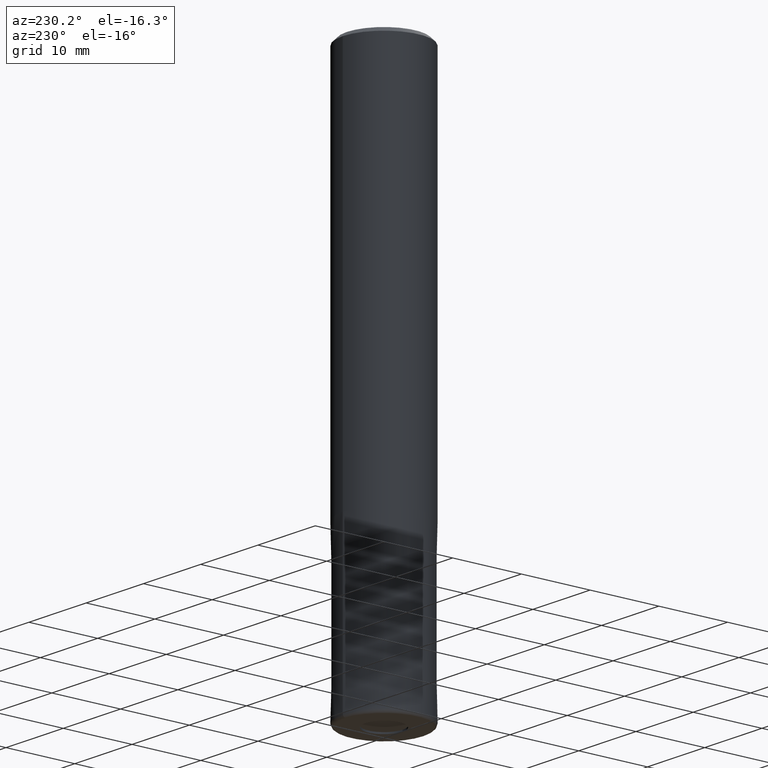
[diagram: clean part render]
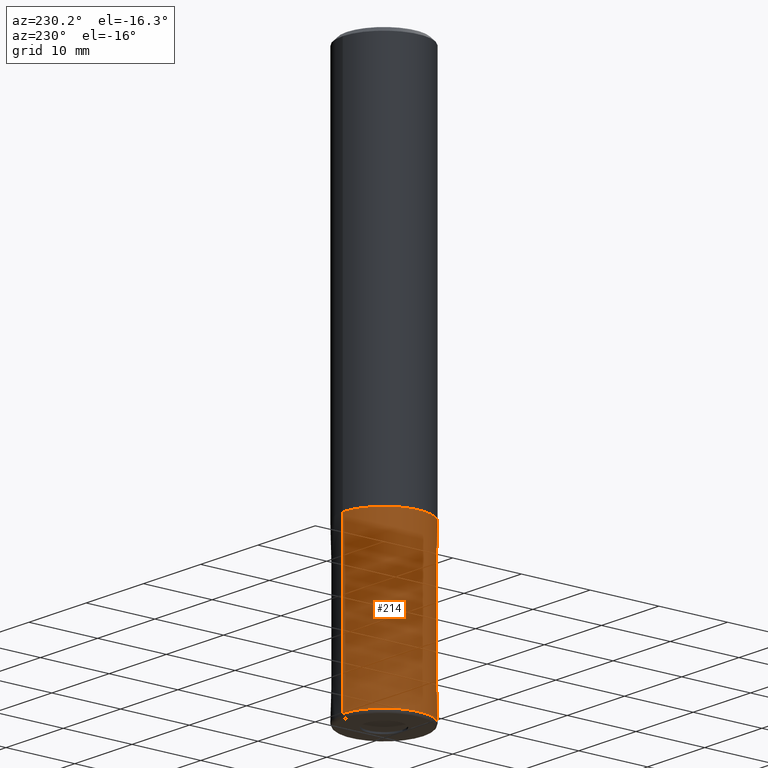
[diagram: same view with one face highlighted and labeled with its STEP entity id]
A machine part, auxiliary view. The second image highlights one B-rep face of the part: STEP entity #214.
In plain terms, the highlighted conical surface has half-angle 0 deg.
Its self-contained STEP definition (entity closure, byte-faithful):
#126=VERTEX_POINT('',#287);
#134=EDGE_CURVE('',#126,#232,#296,.T.);
#136=EDGE_CURVE('',#228,#232,#298,.T.);
#194=VERTEX_POINT('',#369);
#214=ADVANCED_FACE('',(#391),#392,.T.);
#228=VERTEX_POINT('',#409);
#230=EDGE_CURVE('',#194,#228,#411,.T.);
#232=VERTEX_POINT('',#413);
#240=EDGE_CURVE('',#126,#194,#421,.T.);
#287=CARTESIAN_POINT('',(7.34763812293426E-016,-6.0,-79.5));
#296=CIRCLE('',#479,6.0);
#298=LINE('',#482,#483);
#369=CARTESIAN_POINT('',(7.34751566229888E-016,-5.9999,-56.0));
#391=FACE_OUTER_BOUND('',#596,.T.);
#392=CONICAL_SURFACE('',#597,5.99995,4.25531914890057E-006);
#409=CARTESIAN_POINT('',(0.0,5.9999,-56.0));
#411=CIRCLE('',#619,5.9999);
#413=CARTESIAN_POINT('',(0.0,6.0,-79.5));
#421=LINE('',#631,#632);
#479=AXIS2_PLACEMENT_3D('',#669,#670,#671);
#482=CARTESIAN_POINT('',(-7.34757689261657E-016,5.99995,-67.75));
#483=VECTOR('',#672,1.0);
#596=EDGE_LOOP('',(#800,#801,#802,#803));
#597=AXIS2_PLACEMENT_3D('',#804,#805,#806);
#619=AXIS2_PLACEMENT_3D('',#837,#838,#839);
#631=CARTESIAN_POINT('',(7.34757689261657E-016,-5.99995,-67.75));
#632=VECTOR('',#843,1.0);
#669=CARTESIAN_POINT('',(0.0,0.0,-79.5));
#670=DIRECTION('',(0.0,0.0,-1.0));
#671=DIRECTION('',(0.0,1.0,0.0));
#672=DIRECTION('',(-5.21109086726994E-022,4.25531914888773E-006,-0.999999999990946));
#800=ORIENTED_EDGE('',*,*,#136,.T.);
#801=ORIENTED_EDGE('',*,*,#134,.F.);
#802=ORIENTED_EDGE('',*,*,#240,.T.);
#803=ORIENTED_EDGE('',*,*,#230,.T.);
#804=CARTESIAN_POINT('',(0.0,0.0,-67.75));
#805=DIRECTION('',(0.0,-0.0,-1.0));
#806=DIRECTION('',(0.0,1.0,0.0));
#837=CARTESIAN_POINT('',(0.0,0.0,-56.0));
#838=DIRECTION('',(0.0,0.0,-1.0));
#839=DIRECTION('',(0.0,1.0,0.0));
#843=DIRECTION('',(-5.21109086726994E-022,4.25531914888773E-006,0.999999999990946));